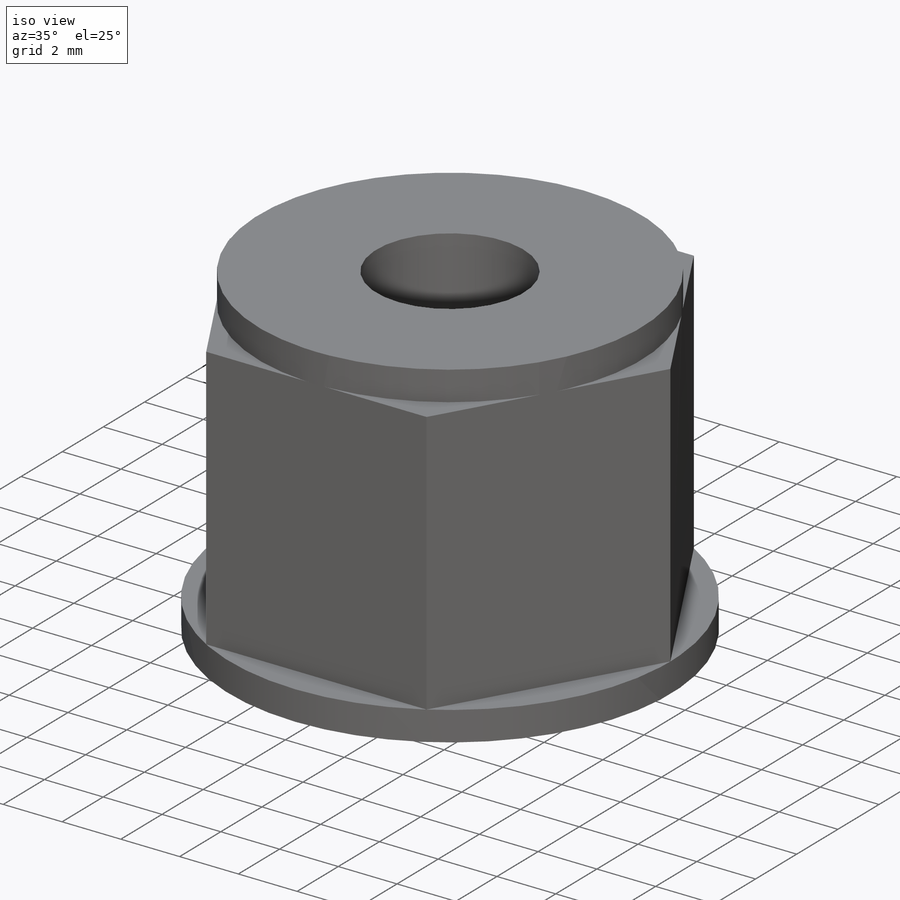
[diagram: iso view]
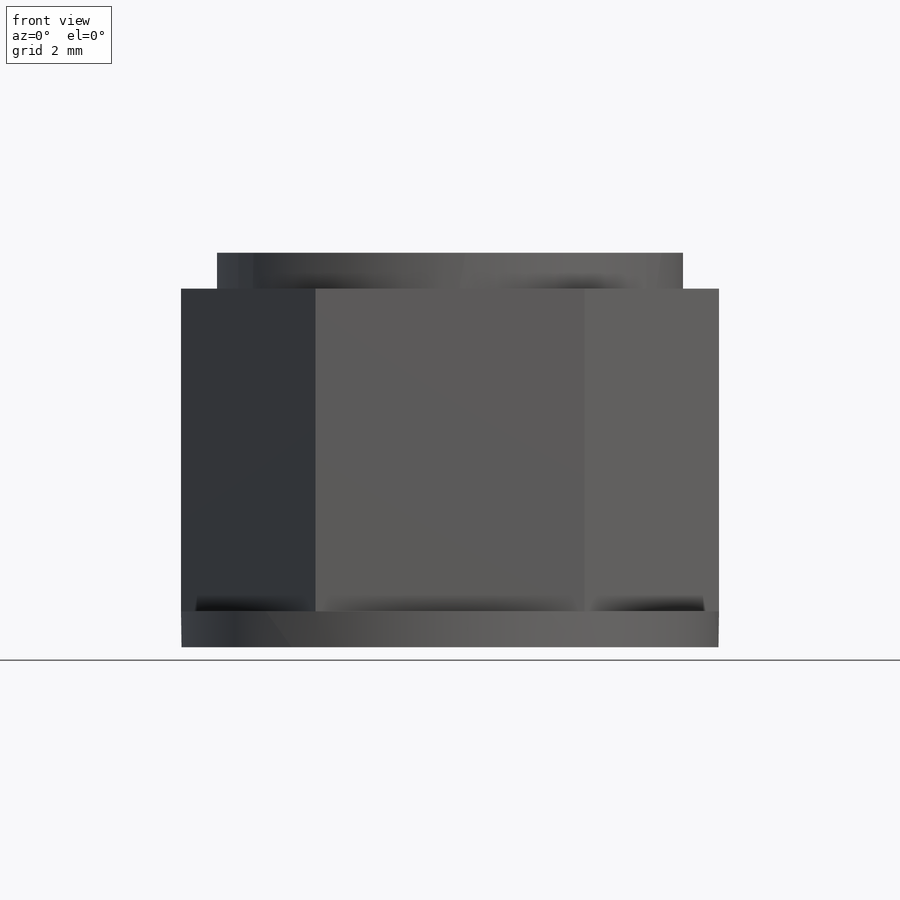
[diagram: front view]
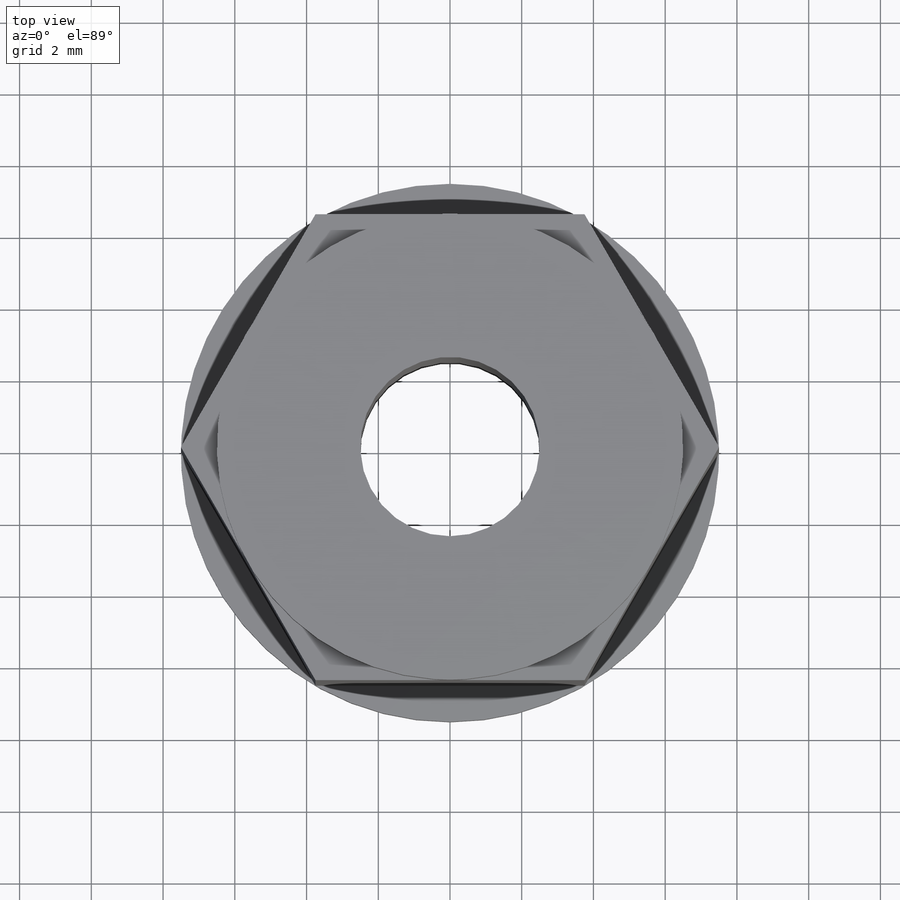
[diagram: top view]
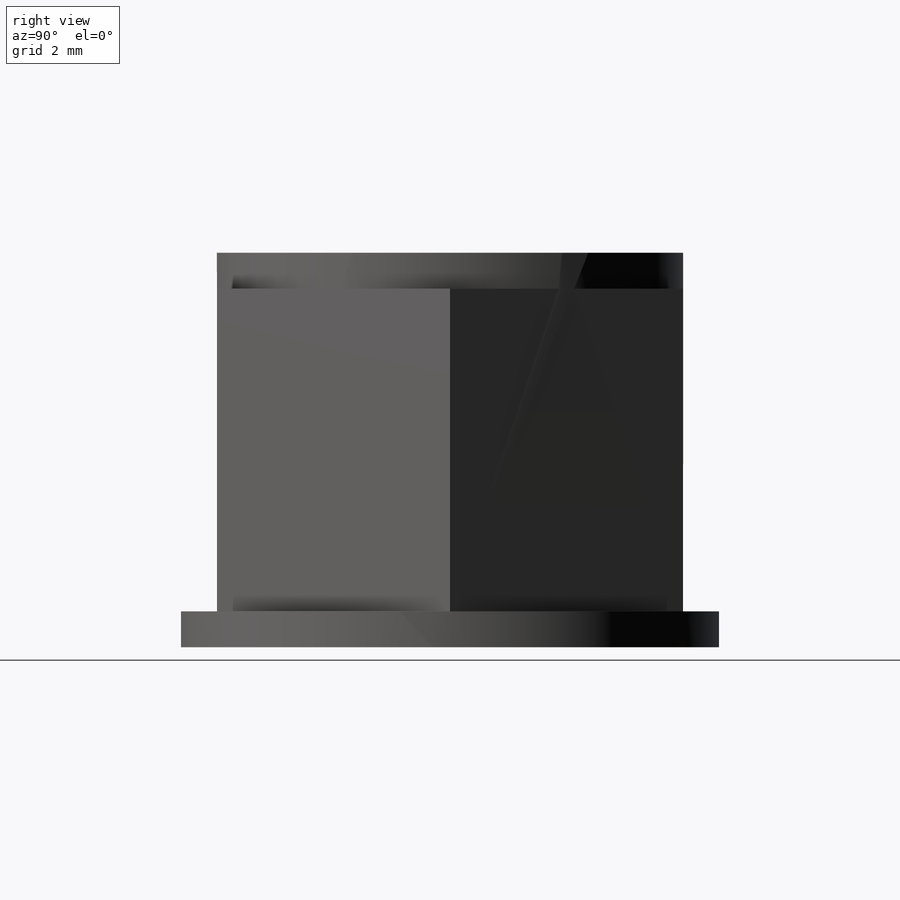
[diagram: right view]
SOLIDWORKS PART (.sldprt)
format: sldprt  version: not decoded by parser v0  size: 168,960 bytes
history: native  units: mm
features: sketch x4, plane x3, extrude x3, material x1, cut_extrude x1 (+10 scaffold rows collapsed)
feature tree (22):
  scaffold x10  (default folders/planes/origin — collapsed)
  material  "Matériau <non spécifié>"
  plane  "Plan de face"
  plane  "Plan de dessus"
  plane  "Plan de droite"
  sketch  "Esquisse1"  dims[D1=15.0mm]
  extrude  "Boss.-Extru.1"  Depth=1mm
  sketch  "Esquisse2"  dims[c1.D1=~26.033741mm c2.D1=60.0deg c2.D2=~26.033741mm c3.D2=60.0deg c3.D3=7.5mm]
  extrude  "Boss.-Extru.2"  Depth=9mm
  sketch  "Esquisse3"  dims[D1=13.0mm]
  extrude  "Boss.-Extru.3"  Depth=1mm
  sketch  "Esquisse4"  dims[D1=5.0mm]
  cut_extrude  "Enlèv. mat.-Extru.1"  Depth=11mm
decode coverage: 8 of 8 modeling features carry decoded parameters
note: ~ marks probable driven/reference dimensions
note: suppression state not decoded; provenance and decode notes live in map.json
